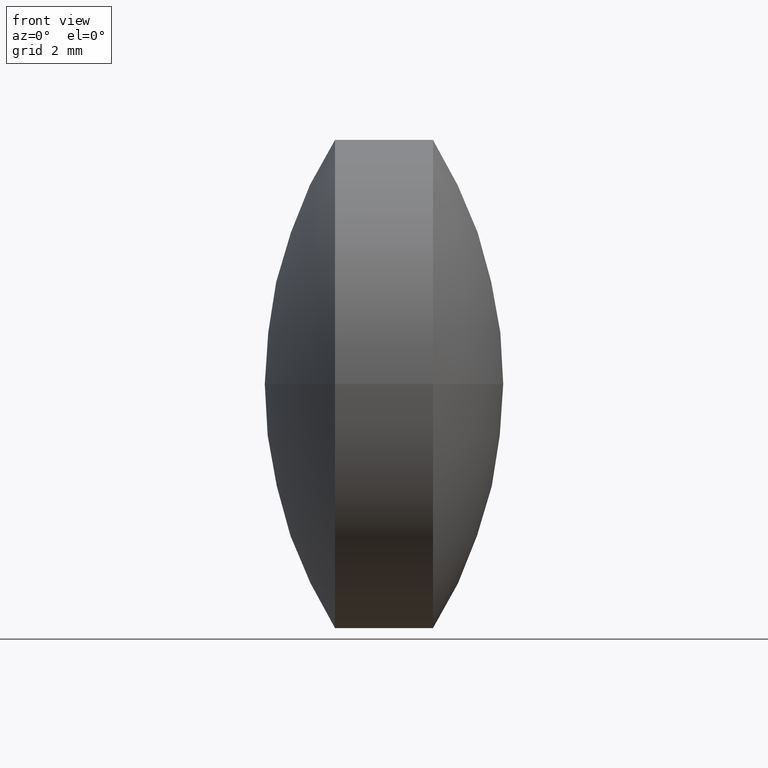
[diagram: clean part render]
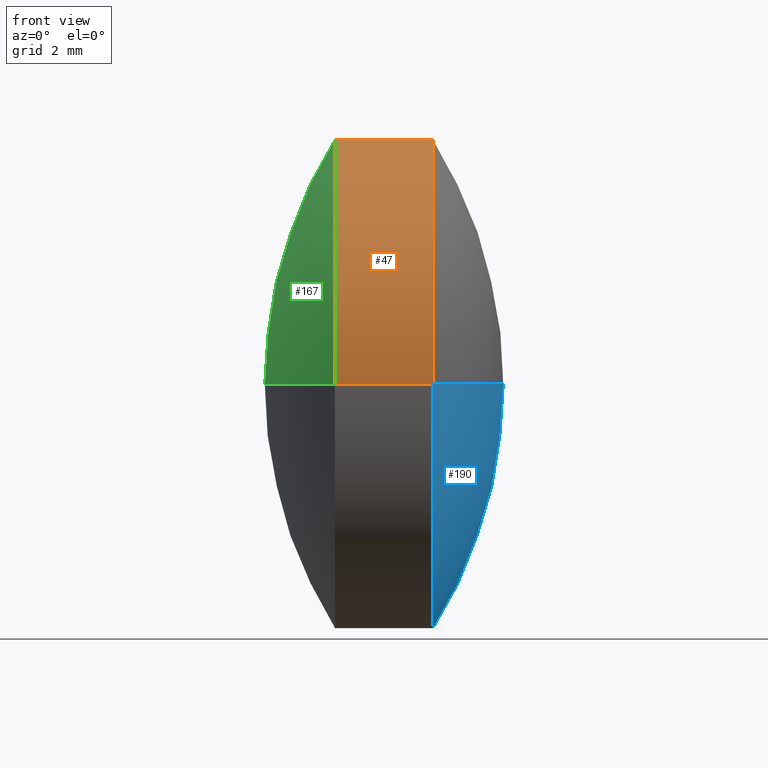
[diagram: same view with three faces highlighted in distinct colors, each labeled with its STEP entity id]
A machine part, front view with three faces highlighted in distinct colors.
Their STEP definitions:

[orange] entity #47 — the highlighted cylindrical surface (partial cylindrical patch) has radius 5 mm, axis along (-1, -0, -0).
#12 = CARTESIAN_POINT ( 'NONE',  ( 33.03865896640255100, 19.14020197763177600, 0.0000000000000000000 ) ) ;
#22 = EDGE_CURVE ( 'NONE', #143, #117, #217, .T. ) ;
#23 = ORIENTED_EDGE ( 'NONE', *, *, #22, .F. ) ;
#34 = DIRECTION ( 'NONE',  ( -1.000000000000000000, -1.488330084728689300E-015, -0.0000000000000000000 ) ) ;
#38 = DIRECTION ( 'NONE',  ( 1.387778780781443900E-015, -1.000000000000000000, 0.0000000000000000000 ) ) ;
#43 = EDGE_LOOP ( 'NONE', ( #265, #226, #23, #281 ) ) ;
#47 = ADVANCED_FACE ( 'NONE', ( #75 ), #137, .T. ) ;
#56 = EDGE_CURVE ( 'NONE', #98, #249, #259, .T. ) ;
#57 = CARTESIAN_POINT ( 'NONE',  ( 33.03865896640255800, 14.14020197763176900, -6.123233995736773200E-016 ) ) ;
#58 = AXIS2_PLACEMENT_3D ( 'NONE', #298, #63, #81 ) ;
#63 = DIRECTION ( 'NONE',  ( -1.000000000000000000, -1.488330084728689300E-015, -0.0000000000000000000 ) ) ;
#75 = FACE_OUTER_BOUND ( 'NONE', #43, .T. ) ;
#81 = DIRECTION ( 'NONE',  ( 1.387778780781444500E-015, -1.000000000000000000, 0.0000000000000000000 ) ) ;
#94 = EDGE_CURVE ( 'NONE', #98, #143, #274, .T. ) ;
#96 = CARTESIAN_POINT ( 'NONE',  ( 35.03865896640255100, 19.14020197763177600, 0.0000000000000000000 ) ) ;
#98 = VERTEX_POINT ( 'NONE', #198 ) ;
#103 = CARTESIAN_POINT ( 'NONE',  ( 35.03865896640254400, 24.14020197763177200, 6.123233995736756400E-016 ) ) ;
#107 = DIRECTION ( 'NONE',  ( -1.000000000000000000, -1.488330084728689300E-015, -0.0000000000000000000 ) ) ;
#108 = CARTESIAN_POINT ( 'NONE',  ( 33.03865896640254400, 24.14020197763178300, 0.0000000000000000000 ) ) ;
#117 = VERTEX_POINT ( 'NONE', #108 ) ;
#125 = DIRECTION ( 'NONE',  ( -1.000000000000000000, -1.488330084728689300E-015, -0.0000000000000000000 ) ) ;
#137 = CYLINDRICAL_SURFACE ( 'NONE', #58, 5.000000000000004400 ) ;
#143 = VERTEX_POINT ( 'NONE', #57 ) ;
#144 = AXIS2_PLACEMENT_3D ( 'NONE', #96, #125, #284 ) ;
#155 = CARTESIAN_POINT ( 'NONE',  ( 27.04535757267420900, 24.14020197763177200, 6.123233995736772200E-016 ) ) ;
#174 = CARTESIAN_POINT ( 'NONE',  ( 27.04535757267422400, 14.14020197763176200, 0.0000000000000000000 ) ) ;
#198 = CARTESIAN_POINT ( 'NONE',  ( 35.03865896640255800, 14.14020197763178500, 0.0000000000000000000 ) ) ;
#204 = EDGE_CURVE ( 'NONE', #249, #117, #216, .T. ) ;
#213 = VECTOR ( 'NONE', #34, 1000.000000000000000 ) ;
#216 = LINE ( 'NONE', #155, #280 ) ;
#217 = CIRCLE ( 'NONE', #293, 5.000000000000006200 ) ;
#221 = DIRECTION ( 'NONE',  ( -1.000000000000000000, -1.488330084728689300E-015, -0.0000000000000000000 ) ) ;
#226 = ORIENTED_EDGE ( 'NONE', *, *, #204, .T. ) ;
#249 = VERTEX_POINT ( 'NONE', #103 ) ;
#259 = CIRCLE ( 'NONE', #144, 5.000000000000002700 ) ;
#265 = ORIENTED_EDGE ( 'NONE', *, *, #56, .T. ) ;
#274 = LINE ( 'NONE', #174, #213 ) ;
#280 = VECTOR ( 'NONE', #221, 1000.000000000000000 ) ;
#281 = ORIENTED_EDGE ( 'NONE', *, *, #94, .F. ) ;
#284 = DIRECTION ( 'NONE',  ( 1.387778780781444900E-015, -1.000000000000000000, 0.0000000000000000000 ) ) ;
#293 = AXIS2_PLACEMENT_3D ( 'NONE', #12, #107, #38 ) ;
#298 = CARTESIAN_POINT ( 'NONE',  ( 27.04535757267421700, 19.14020197763176500, 0.0000000000000000000 ) ) ;

[blue] entity #190 — the highlighted spherical surface has radius 9.4283 mm.
#16 = DIRECTION ( 'NONE',  ( 1.822678674337698300E-031, -1.224646799147353200E-016, 1.000000000000000000 ) ) ;
#28 = CIRCLE ( 'NONE', #301, 9.428301393728306200 ) ;
#29 = DIRECTION ( 'NONE',  ( -1.000000000000000000, 0.0000000000000000000, 0.0000000000000000000 ) ) ;
#32 = VERTEX_POINT ( 'NONE', #112 ) ;
#36 = EDGE_CURVE ( 'NONE', #32, #249, #113, .T. ) ;
#48 = ORIENTED_EDGE ( 'NONE', *, *, #36, .F. ) ;
#54 = DIRECTION ( 'NONE',  ( -0.0000000000000000000, 0.0000000000000000000, 1.000000000000000000 ) ) ;
#89 = ORIENTED_EDGE ( 'NONE', *, *, #124, .T. ) ;
#98 = VERTEX_POINT ( 'NONE', #198 ) ;
#103 = CARTESIAN_POINT ( 'NONE',  ( 35.03865896640254400, 24.14020197763177200, 6.123233995736756400E-016 ) ) ;
#112 = CARTESIAN_POINT ( 'NONE',  ( 36.47365896640251700, 19.14020197763177900, 0.0000000000000000000 ) ) ;
#113 = CIRCLE ( 'NONE', #128, 9.428301393728306200 ) ;
#124 = EDGE_CURVE ( 'NONE', #32, #98, #28, .T. ) ;
#128 = AXIS2_PLACEMENT_3D ( 'NONE', #252, #16, #253 ) ;
#130 = DIRECTION ( 'NONE',  ( 1.471928741803474900E-015, -1.000000000000000000, 0.0000000000000000000 ) ) ;
#133 = SPHERICAL_SURFACE ( 'NONE', #251, 9.428301393728306200 ) ;
#147 = AXIS2_PLACEMENT_3D ( 'NONE', #220, #201, #267 ) ;
#171 = ORIENTED_EDGE ( 'NONE', *, *, #278, .F. ) ;
#177 = DIRECTION ( 'NONE',  ( 0.0000000000000000000, 0.0000000000000000000, -1.000000000000000000 ) ) ;
#190 = ADVANCED_FACE ( 'NONE', ( #207 ), #133, .T. ) ;
#198 = CARTESIAN_POINT ( 'NONE',  ( 35.03865896640255800, 14.14020197763178500, 0.0000000000000000000 ) ) ;
#199 = CARTESIAN_POINT ( 'NONE',  ( 27.04535757267421700, 19.14020197763176500, 0.0000000000000000000 ) ) ;
#201 = DIRECTION ( 'NONE',  ( -1.000000000000000000, -1.488330084728689300E-015, -0.0000000000000000000 ) ) ;
#207 = FACE_OUTER_BOUND ( 'NONE', #305, .T. ) ;
#212 = CIRCLE ( 'NONE', #147, 5.000000000000002700 ) ;
#220 = CARTESIAN_POINT ( 'NONE',  ( 35.03865896640255100, 19.14020197763177600, 0.0000000000000000000 ) ) ;
#249 = VERTEX_POINT ( 'NONE', #103 ) ;
#251 = AXIS2_PLACEMENT_3D ( 'NONE', #269, #54, #130 ) ;
#252 = CARTESIAN_POINT ( 'NONE',  ( 27.04535757267421700, 19.14020197763176500, 0.0000000000000000000 ) ) ;
#253 = DIRECTION ( 'NONE',  ( 0.0000000000000000000, -1.000000000000000000, -1.224646799147353200E-016 ) ) ;
#267 = DIRECTION ( 'NONE',  ( 1.387778780781444900E-015, -1.000000000000000000, 0.0000000000000000000 ) ) ;
#269 = CARTESIAN_POINT ( 'NONE',  ( 27.04535757267421700, 19.14020197763176500, 0.0000000000000000000 ) ) ;
#278 = EDGE_CURVE ( 'NONE', #249, #98, #212, .T. ) ;
#301 = AXIS2_PLACEMENT_3D ( 'NONE', #199, #177, #29 ) ;
#305 = EDGE_LOOP ( 'NONE', ( #48, #89, #171 ) ) ;

[green] entity #167 — the highlighted spherical surface has radius 9.4283 mm.
#8 = DIRECTION ( 'NONE',  ( -0.0000000000000000000, 0.0000000000000000000, -1.000000000000000000 ) ) ;
#12 = CARTESIAN_POINT ( 'NONE',  ( 33.03865896640255100, 19.14020197763177600, 0.0000000000000000000 ) ) ;
#18 = CARTESIAN_POINT ( 'NONE',  ( 41.03196036013073900, 19.14020197763178600, 0.0000000000000000000 ) ) ;
#22 = EDGE_CURVE ( 'NONE', #143, #117, #217, .T. ) ;
#30 = DIRECTION ( 'NONE',  ( -1.471928741803492900E-015, 1.000000000000000000, 0.0000000000000000000 ) ) ;
#38 = DIRECTION ( 'NONE',  ( 1.387778780781443900E-015, -1.000000000000000000, 0.0000000000000000000 ) ) ;
#45 = FACE_OUTER_BOUND ( 'NONE', #120, .T. ) ;
#52 = EDGE_CURVE ( 'NONE', #117, #84, #102, .T. ) ;
#55 = ORIENTED_EDGE ( 'NONE', *, *, #52, .T. ) ;
#57 = CARTESIAN_POINT ( 'NONE',  ( 33.03865896640255800, 14.14020197763176900, -6.123233995736773200E-016 ) ) ;
#66 = ORIENTED_EDGE ( 'NONE', *, *, #121, .F. ) ;
#76 = DIRECTION ( 'NONE',  ( -1.822678674337698300E-031, 1.224646799147353200E-016, -1.000000000000000000 ) ) ;
#84 = VERTEX_POINT ( 'NONE', #104 ) ;
#87 = AXIS2_PLACEMENT_3D ( 'NONE', #218, #76, #151 ) ;
#92 = SPHERICAL_SURFACE ( 'NONE', #142, 9.428301393728192500 ) ;
#102 = CIRCLE ( 'NONE', #236, 9.428301393728189000 ) ;
#104 = CARTESIAN_POINT ( 'NONE',  ( 31.60365896640254800, 19.14020197763177200, 0.0000000000000000000 ) ) ;
#107 = DIRECTION ( 'NONE',  ( -1.000000000000000000, -1.488330084728689300E-015, -0.0000000000000000000 ) ) ;
#108 = CARTESIAN_POINT ( 'NONE',  ( 33.03865896640254400, 24.14020197763178300, 0.0000000000000000000 ) ) ;
#117 = VERTEX_POINT ( 'NONE', #108 ) ;
#120 = EDGE_LOOP ( 'NONE', ( #66, #232, #55 ) ) ;
#121 = EDGE_CURVE ( 'NONE', #143, #84, #235, .T. ) ;
#142 = AXIS2_PLACEMENT_3D ( 'NONE', #288, #8, #30 ) ;
#143 = VERTEX_POINT ( 'NONE', #57 ) ;
#151 = DIRECTION ( 'NONE',  ( 0.0000000000000000000, 1.000000000000000000, 1.224646799147353200E-016 ) ) ;
#167 = ADVANCED_FACE ( 'NONE', ( #45 ), #92, .T. ) ;
#215 = DIRECTION ( 'NONE',  ( -0.0000000000000000000, 0.0000000000000000000, 1.000000000000000000 ) ) ;
#217 = CIRCLE ( 'NONE', #293, 5.000000000000006200 ) ;
#218 = CARTESIAN_POINT ( 'NONE',  ( 41.03196036013073900, 19.14020197763178600, 0.0000000000000000000 ) ) ;
#232 = ORIENTED_EDGE ( 'NONE', *, *, #22, .T. ) ;
#235 = CIRCLE ( 'NONE', #87, 9.428301393728192500 ) ;
#236 = AXIS2_PLACEMENT_3D ( 'NONE', #18, #215, #238 ) ;
#238 = DIRECTION ( 'NONE',  ( 1.000000000000000000, 0.0000000000000000000, 0.0000000000000000000 ) ) ;
#288 = CARTESIAN_POINT ( 'NONE',  ( 41.03196036013073900, 19.14020197763178600, 0.0000000000000000000 ) ) ;
#293 = AXIS2_PLACEMENT_3D ( 'NONE', #12, #107, #38 ) ;